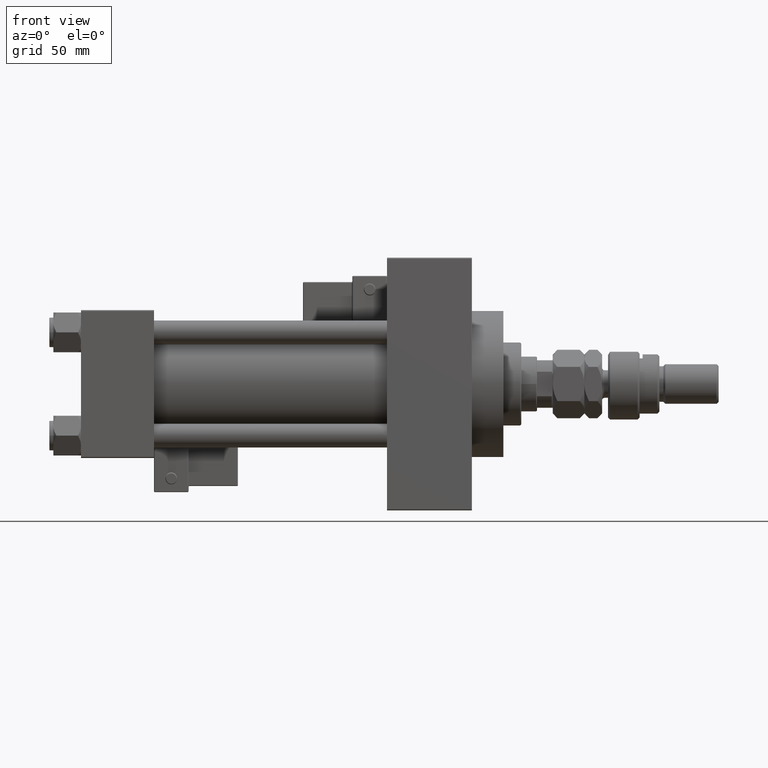
[diagram: clean part render]
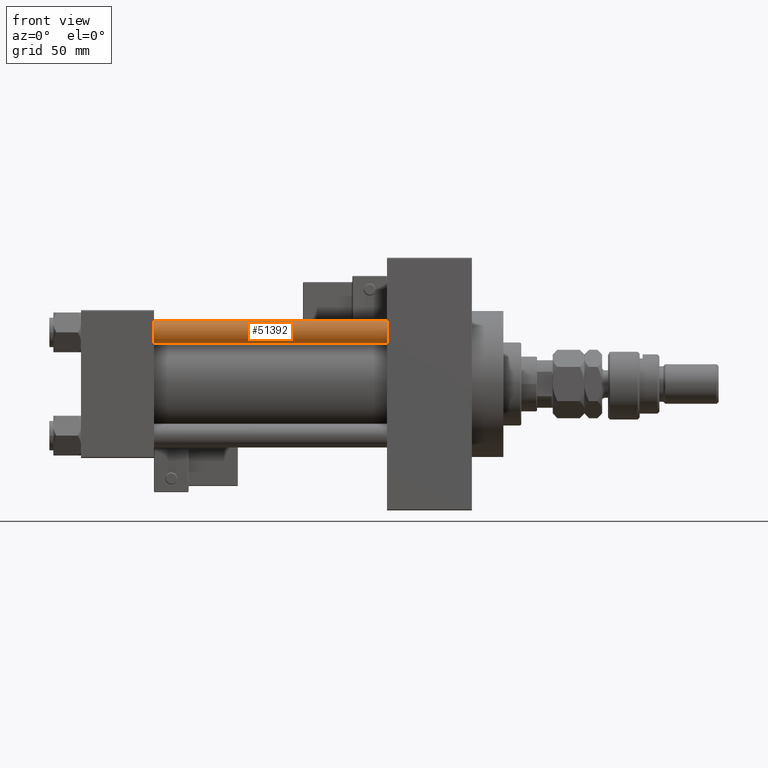
[diagram: same view with one face highlighted and labeled with its STEP entity id]
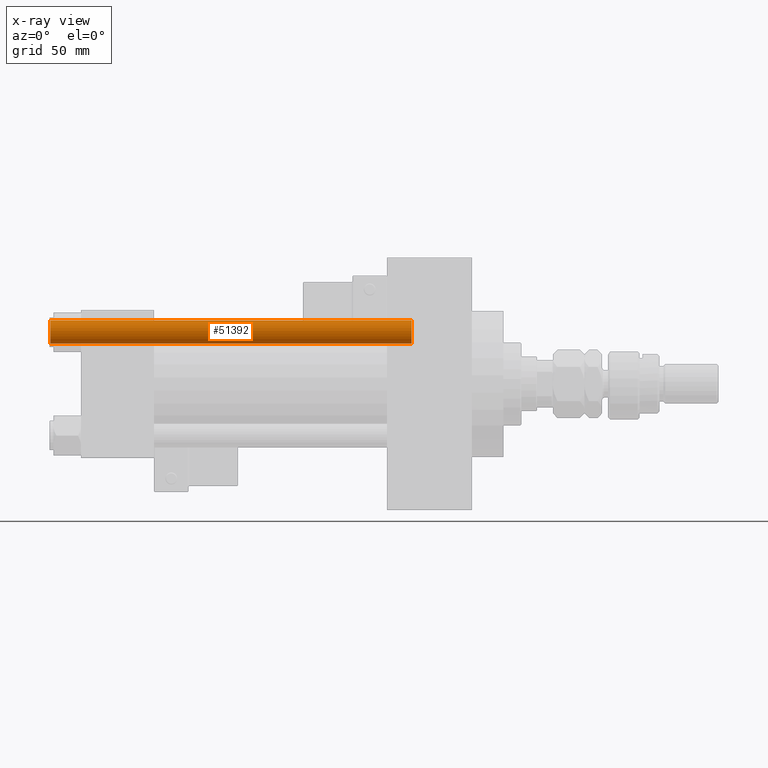
[diagram: x-ray of the same camera — body ghosted, the highlighted face saturated]
A machine part, front view. The second image highlights one B-rep face of the part: STEP entity #51392.
The next image is the same camera in x-ray: the body ghosted, the highlighted face saturated — about 0% of this face is hidden behind the body in this view.
In plain terms, the highlighted cylindrical surface (edge-blend (fillet) strip) has radius 6 mm, axis along (1, 0, 0).
Its self-contained STEP definition (entity closure, byte-faithful):
#613 = EDGE_CURVE ( 'NONE', #49217, #8284, #25022, .T. ) ;
#2932 = DIRECTION ( 'NONE',  ( -0.000000000000000000, -0.000000000000000000, -1.000000000000000000 ) ) ;
#3338 = FACE_OUTER_BOUND ( 'NONE', #37777, .T. ) ;
#3592 = DIRECTION ( 'NONE',  ( -0.000000000000000000, -0.000000000000000000, -1.000000000000000000 ) ) ;
#4025 = CARTESIAN_POINT ( 'NONE',  ( 0.000000000000000000, 0.000000000000000000, 0.5000000000000004441 ) ) ;
#4845 = CARTESIAN_POINT ( 'NONE',  ( -6.000000000000000888, 0.000000000000000000, 184.0000000000000000 ) ) ;
#4852 = VECTOR ( 'NONE', #2932, 1000.000000000000000 ) ;
#6252 = ORIENTED_EDGE ( 'NONE', *, *, #50653, .T. ) ;
#8284 = VERTEX_POINT ( 'NONE', #23040 ) ;
#9362 = CIRCLE ( 'NONE', #32244, 6.000000000000000888 ) ;
#11820 = ORIENTED_EDGE ( 'NONE', *, *, #33157, .T. ) ;
#12931 = CARTESIAN_POINT ( 'NONE',  ( 6.000000000000000888, 7.347880794884120722E-16, 183.5000000000000000 ) ) ;
#13350 = AXIS2_PLACEMENT_3D ( 'NONE', #50169, #13852, #30029 ) ;
#13852 = DIRECTION ( 'NONE',  ( 0.000000000000000000, 0.000000000000000000, -1.000000000000000000 ) ) ;
#15627 = ORIENTED_EDGE ( 'NONE', *, *, #38794, .T. ) ;
#17678 = CARTESIAN_POINT ( 'NONE',  ( -6.000000000000000888, 0.000000000000000000, 183.5000000000000000 ) ) ;
#20804 = VECTOR ( 'NONE', #37228, 1000.000000000000000 ) ;
#21006 = CIRCLE ( 'NONE', #13350, 6.000000000000000888 ) ;
#22484 = ORIENTED_EDGE ( 'NONE', *, *, #613, .F. ) ;
#23040 = CARTESIAN_POINT ( 'NONE',  ( -6.000000000000000888, 0.000000000000000000, 0.5000000000000004441 ) ) ;
#23377 = LINE ( 'NONE', #31340, #4852 ) ;
#24208 = VERTEX_POINT ( 'NONE', #28104 ) ;
#24409 = AXIS2_PLACEMENT_3D ( 'NONE', #43916, #3592, #44703 ) ;
#25022 = LINE ( 'NONE', #4845, #20804 ) ;
#28104 = CARTESIAN_POINT ( 'NONE',  ( 6.000000000000000888, 7.347880794884120722E-16, 0.5000000000000004441 ) ) ;
#30029 = DIRECTION ( 'NONE',  ( 1.000000000000000000, 0.000000000000000000, 0.000000000000000000 ) ) ;
#30369 = VERTEX_POINT ( 'NONE', #12931 ) ;
#31340 = CARTESIAN_POINT ( 'NONE',  ( 6.000000000000000888, 7.347880794884120722E-16, 184.0000000000000000 ) ) ;
#32244 = AXIS2_PLACEMENT_3D ( 'NONE', #4025, #32417, #52285 ) ;
#32417 = DIRECTION ( 'NONE',  ( -0.000000000000000000, -0.000000000000000000, 1.000000000000000000 ) ) ;
#33157 = EDGE_CURVE ( 'NONE', #30369, #24208, #23377, .T. ) ;
#35455 = CYLINDRICAL_SURFACE ( 'NONE', #24409, 6.000000000000000888 ) ;
#37228 = DIRECTION ( 'NONE',  ( -0.000000000000000000, -0.000000000000000000, -1.000000000000000000 ) ) ;
#37777 = EDGE_LOOP ( 'NONE', ( #6252, #11820, #15627, #22484 ) ) ;
#38794 = EDGE_CURVE ( 'NONE', #24208, #8284, #9362, .T. ) ;
#43916 = CARTESIAN_POINT ( 'NONE',  ( 0.000000000000000000, 0.000000000000000000, 184.0000000000000000 ) ) ;
#44703 = DIRECTION ( 'NONE',  ( -1.000000000000000000, 0.000000000000000000, 0.000000000000000000 ) ) ;
#49217 = VERTEX_POINT ( 'NONE', #17678 ) ;
#50169 = CARTESIAN_POINT ( 'NONE',  ( 0.000000000000000000, 0.000000000000000000, 183.5000000000000000 ) ) ;
#50653 = EDGE_CURVE ( 'NONE', #49217, #30369, #21006, .T. ) ;
#51392 = ADVANCED_FACE ( 'NONE', ( #3338 ), #35455, .T. ) ;
#52285 = DIRECTION ( 'NONE',  ( 1.000000000000000000, 0.000000000000000000, 0.000000000000000000 ) ) ;